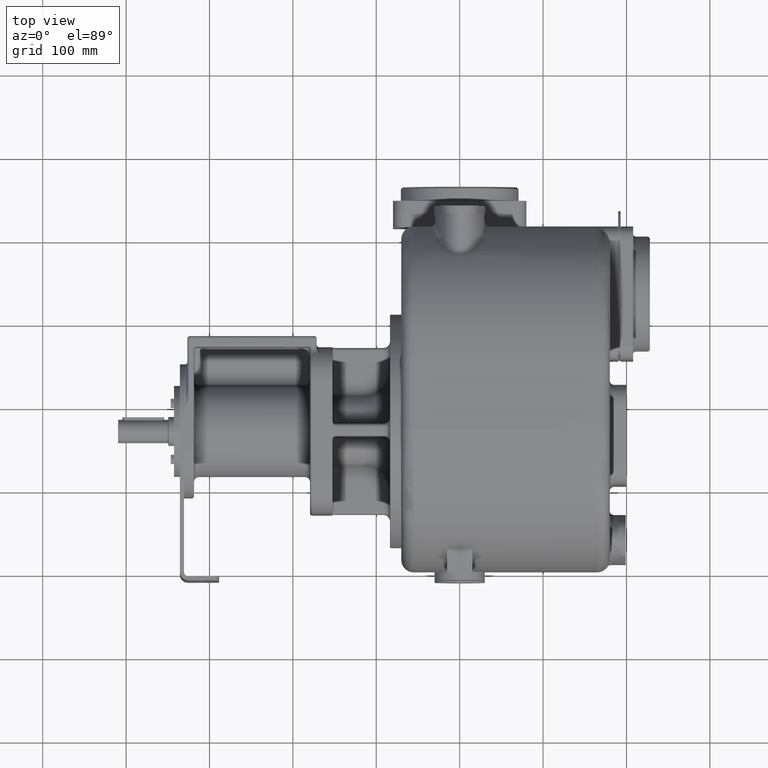
[diagram: clean part render]
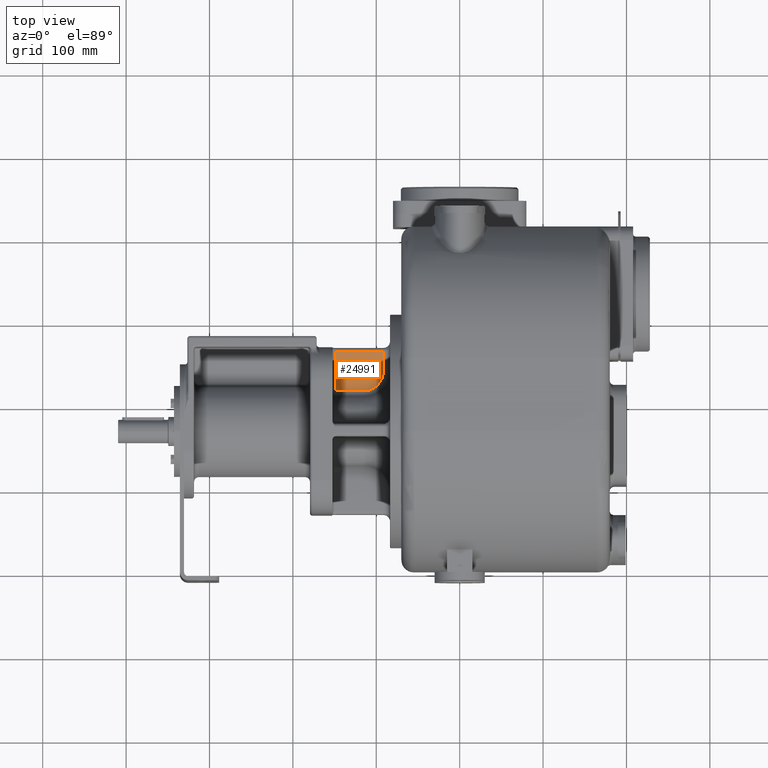
[diagram: same view with one face highlighted and labeled with its STEP entity id]
A machine part, top view. The second image highlights one B-rep face of the part: STEP entity #24991.
In plain terms, the highlighted planar face has unit normal (0, 0, 1).
Its self-contained STEP definition (entity closure, byte-faithful):
#10333=DIRECTION('',(0.E0,-1.E0,0.E0));
#10334=VECTOR('',#10333,4.712515984675E1);
#10335=CARTESIAN_POINT('',(-1.485E2,2.66E2,1.25E1));
#10336=LINE('',#10335,#10334);
#10337=DIRECTION('',(-1.E0,2.014450984190E-13,0.E0));
#10338=VECTOR('',#10337,5.7E1);
#10339=CARTESIAN_POINT('',(-9.15E1,2.66E2,1.25E1));
#10340=LINE('',#10339,#10338);
#10341=DIRECTION('',(0.E0,1.E0,0.E0));
#10342=VECTOR('',#10341,2.385604668441E1);
#10343=CARTESIAN_POINT('',(-9.15E1,2.421439533156E2,1.25E1));
#10344=LINE('',#10343,#10342);
#10345=CARTESIAN_POINT('',(-1.135E2,2.188748401532E2,1.25E1));
#10346=CARTESIAN_POINT('',(-1.132916240275E2,2.188748432746E2,1.25E1));
#10347=CARTESIAN_POINT('',(-1.128745485144E2,2.188812753554E2,1.25E1));
#10348=CARTESIAN_POINT('',(-1.122476756943E2,2.189102942882E2,1.25E1));
#10349=CARTESIAN_POINT('',(-1.116204098574E2,2.189587907749E2,1.25E1));
#10350=CARTESIAN_POINT('',(-1.109933332789E2,2.190268799552E2,1.25E1));
#10351=CARTESIAN_POINT('',(-1.103670689266E2,2.191145891144E2,1.25E1));
#10352=CARTESIAN_POINT('',(-1.097422041042E2,2.192219167918E2,1.25E1));
#10353=CARTESIAN_POINT('',(-1.091193699735E2,2.193488654284E2,1.25E1));
#10354=CARTESIAN_POINT('',(-1.084990909992E2,2.194954121994E2,1.25E1));
#10355=CARTESIAN_POINT('',(-1.078816193413E2,2.196615627563E2,1.25E1));
#10356=CARTESIAN_POINT('',(-1.072672750573E2,2.198473595689E2,1.25E1));
#10357=CARTESIAN_POINT('',(-1.066563810456E2,2.200528767043E2,1.25E1));
#10358=CARTESIAN_POINT('',(-1.060494449823E2,2.202780705921E2,1.25E1));
#10359=CARTESIAN_POINT('',(-1.054469980099E2,2.205228978675E2,1.25E1));
#10360=CARTESIAN_POINT('',(-1.048495969885E2,2.207873236151E2,1.25E1));
#10361=CARTESIAN_POINT('',(-1.042577578684E2,2.210712763238E2,1.25E1));
#10362=CARTESIAN_POINT('',(-1.036719899146E2,2.213746730395E2,1.25E1));
#10363=CARTESIAN_POINT('',(-1.030928270353E2,2.216974455734E2,1.25E1));
#10364=CARTESIAN_POINT('',(-1.025208335472E2,2.220394865135E2,1.25E1));
#10365=CARTESIAN_POINT('',(-1.019566215654E2,2.224006092634E2,1.25E1));
#10366=CARTESIAN_POINT('',(-1.014008127771E2,2.227806292268E2,1.25E1));
#10367=CARTESIAN_POINT('',(-1.008540422456E2,2.231793417225E2,1.25E1));
#10368=CARTESIAN_POINT('',(-1.003169435510E2,2.235964718794E2,1.25E1));
#10369=CARTESIAN_POINT('',(-9.979016008975E1,2.240317291208E2,1.25E1));
#10370=CARTESIAN_POINT('',(-9.927434436047E1,2.244848099984E2,1.25E1));
#10371=CARTESIAN_POINT('',(-9.877014420209E1,2.249553412632E2,1.25E1));
#10372=CARTESIAN_POINT('',(-9.827820677437E1,2.254429170278E2,1.25E1));
#10373=CARTESIAN_POINT('',(-9.779918368453E1,2.259471176618E2,1.25E1));
#10374=CARTESIAN_POINT('',(-9.733370958280E1,2.264674728240E2,1.25E1));
#10375=CARTESIAN_POINT('',(-9.688240236447E1,2.270034697910E2,1.25E1));
#10376=CARTESIAN_POINT('',(-9.644587956217E1,2.275545802115E2,1.25E1));
#10377=CARTESIAN_POINT('',(-9.602473779583E1,2.281202415617E2,1.25E1));
#10378=CARTESIAN_POINT('',(-9.561953812531E1,2.286998498063E2,1.25E1));
#10379=CARTESIAN_POINT('',(-9.523083576003E1,2.292927838675E2,1.25E1));
#10380=CARTESIAN_POINT('',(-9.485916647457E1,2.298984003434E2,1.25E1));
#10381=CARTESIAN_POINT('',(-9.450501305948E1,2.305160256670E2,1.25E1));
#10382=CARTESIAN_POINT('',(-9.416884589325E1,2.311449697708E2,1.25E1));
#10383=CARTESIAN_POINT('',(-9.385112024668E1,2.317845266976E2,1.25E1));
#10384=CARTESIAN_POINT('',(-9.355222489044E1,2.324339840270E2,1.25E1));
#10385=CARTESIAN_POINT('',(-9.327252858344E1,2.330926158018E2,1.25E1));
#10386=CARTESIAN_POINT('',(-9.301238923496E1,2.337596879216E2,1.25E1));
#10387=CARTESIAN_POINT('',(-9.277211500245E1,2.344344386965E2,1.25E1));
#10388=CARTESIAN_POINT('',(-9.255197979453E1,2.351160954215E2,1.25E1));
#10389=CARTESIAN_POINT('',(-9.235225011580E1,2.358038687126E2,1.25E1));
#10390=CARTESIAN_POINT('',(-9.217312560748E1,2.364970218121E2,1.25E1));
#10391=CARTESIAN_POINT('',(-9.201475655388E1,2.371948452440E2,1.25E1));
#10392=CARTESIAN_POINT('',(-9.187729292780E1,2.378966369213E2,1.25E1));
#10393=CARTESIAN_POINT('',(-9.176087196988E1,2.386016298848E2,1.25E1));
#10394=CARTESIAN_POINT('',(-9.166558782112E1,2.393089536144E2,1.25E1));
#10395=CARTESIAN_POINT('',(-9.159150844757E1,2.400177652818E2,1.25E1));
#10396=CARTESIAN_POINT('',(-9.153866841144E1,2.407271824590E2,1.25E1));
#10397=CARTESIAN_POINT('',(-9.150702022046E1,2.414363865944E2,1.25E1));
#10398=CARTESIAN_POINT('',(-9.150000239657E1,2.419082140041E2,1.25E1));
#10399=CARTESIAN_POINT('',(-9.15E1,2.421439533156E2,1.25E1));
#10401=DIRECTION('',(1.E0,-1.635466365510E-12,0.E0));
#10402=VECTOR('',#10401,3.5E1);
#10403=CARTESIAN_POINT('',(-1.485E2,2.188748401532E2,1.25E1));
#10404=LINE('',#10403,#10402);
#11775=CARTESIAN_POINT('',(-9.15E1,2.66E2,1.25E1));
#11777=VERTEX_POINT('',#11775);
#11779=CARTESIAN_POINT('',(-1.485E2,2.66E2,1.25E1));
#11781=VERTEX_POINT('',#11779);
#11846=CARTESIAN_POINT('',(-1.485E2,2.188748401532E2,1.25E1));
#11847=VERTEX_POINT('',#11846);
#11924=VERTEX_POINT('',#10345);
#11925=VERTEX_POINT('',#10399);
#24977=CARTESIAN_POINT('',(-1.525E2,2.7E2,1.25E1));
#24978=DIRECTION('',(0.E0,0.E0,1.E0));
#24979=DIRECTION('',(0.E0,-1.E0,0.E0));
#24980=AXIS2_PLACEMENT_3D('',#24977,#24978,#24979);
#24981=PLANE('',#24980);
#24983=ORIENTED_EDGE('',*,*,#24982,.F.);
#24984=ORIENTED_EDGE('',*,*,#23596,.F.);
#24985=ORIENTED_EDGE('',*,*,#23172,.F.);
#24986=ORIENTED_EDGE('',*,*,#23260,.F.);
#24988=ORIENTED_EDGE('',*,*,#24987,.F.);
#24989=EDGE_LOOP('',(#24983,#24984,#24985,#24986,#24988));
#24990=FACE_OUTER_BOUND('',#24989,.F.);
#24991=ADVANCED_FACE('',(#24990),#24981,.T.);
#10400=B_SPLINE_CURVE_WITH_KNOTS('',3,(#10345,#10346,#10347,#10348,#10349,
#10350,#10351,#10352,#10353,#10354,#10355,#10356,#10357,#10358,#10359,#10360,
#10361,#10362,#10363,#10364,#10365,#10366,#10367,#10368,#10369,#10370,#10371,
#10372,#10373,#10374,#10375,#10376,#10377,#10378,#10379,#10380,#10381,#10382,
#10383,#10384,#10385,#10386,#10387,#10388,#10389,#10390,#10391,#10392,#10393,
#10394,#10395,#10396,#10397,#10398,#10399),.UNSPECIFIED.,.F.,.F.,(4,1,1,1,1,1,1,
1,1,1,1,1,1,1,1,1,1,1,1,1,1,1,1,1,1,1,1,1,1,1,1,1,1,1,1,1,1,1,1,1,1,1,1,1,1,1,1,
1,1,1,1,1,4),(0.E0,1.923076923077E-2,3.846153846154E-2,5.769230769231E-2,
7.692307692308E-2,9.615384615385E-2,1.153846153846E-1,1.346153846154E-1,
1.538461538462E-1,1.730769230769E-1,1.923076923077E-1,2.115384615385E-1,
2.307692307692E-1,2.5E-1,2.692307692308E-1,2.884615384615E-1,3.076923076923E-1,
3.269230769231E-1,3.461538461538E-1,3.653846153846E-1,3.846153846154E-1,
4.038461538462E-1,4.230769230769E-1,4.423076923077E-1,4.615384615385E-1,
4.807692307692E-1,5.E-1,5.192307692308E-1,5.384615384615E-1,5.576923076923E-1,
5.769230769231E-1,5.961538461538E-1,6.153846153846E-1,6.346153846154E-1,
6.538461538462E-1,6.730769230769E-1,6.923076923077E-1,7.115384615385E-1,
7.307692307692E-1,7.5E-1,7.692307692308E-1,7.884615384615E-1,8.076923076923E-1,
8.269230769231E-1,8.461538461538E-1,8.653846153846E-1,8.846153846154E-1,
9.038461538462E-1,9.230769230769E-1,9.423076923077E-1,9.615384615385E-1,
9.807692307692E-1,1.E0),.UNSPECIFIED.);
#23172=EDGE_CURVE('',#11925,#11777,#10344,.T.);
#23260=EDGE_CURVE('',#11924,#11925,#10400,.T.);
#23596=EDGE_CURVE('',#11777,#11781,#10340,.T.);
#24982=EDGE_CURVE('',#11781,#11847,#10336,.T.);
#24987=EDGE_CURVE('',#11847,#11924,#10404,.T.);